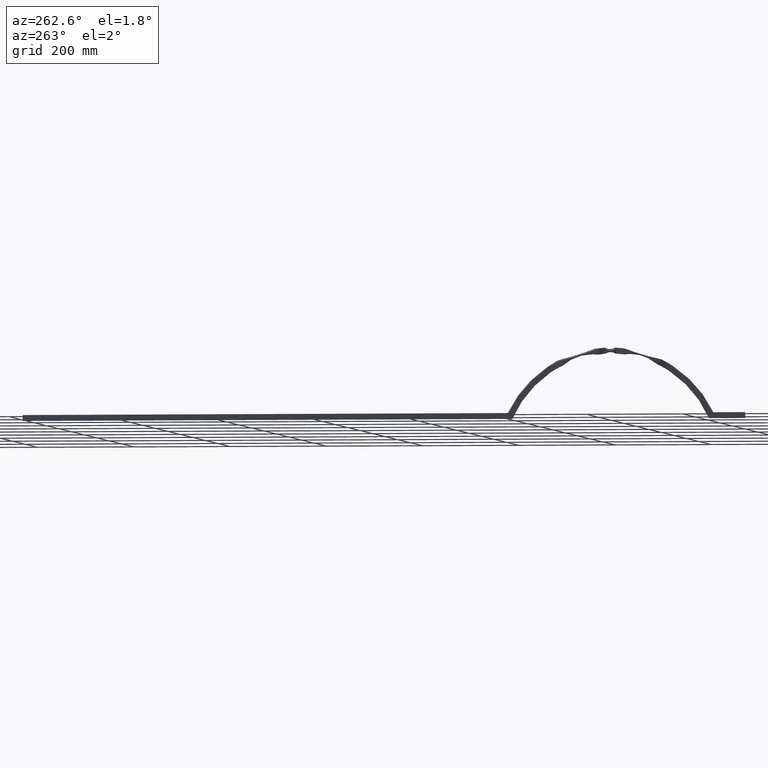
[diagram: clean part render]
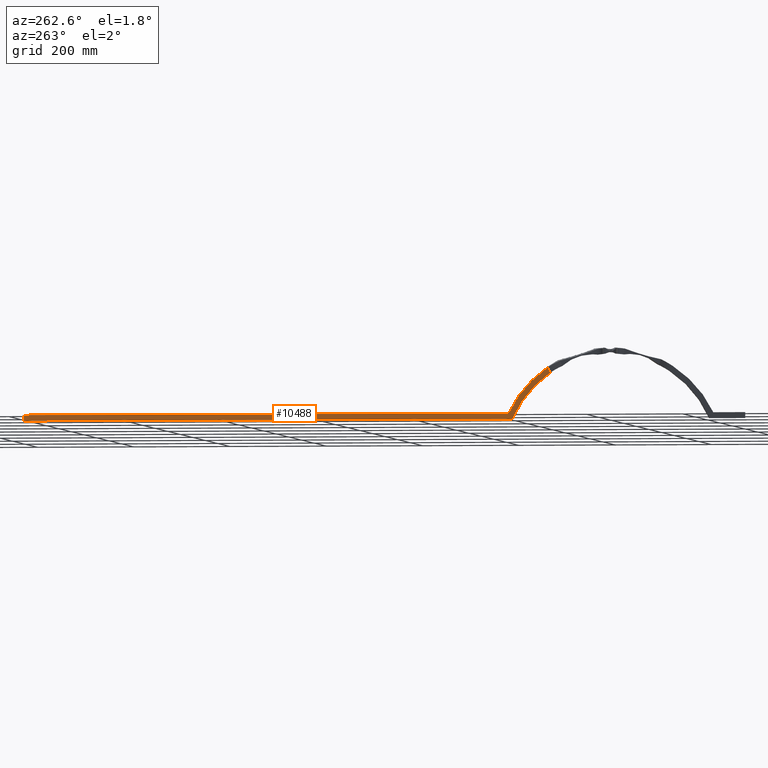
[diagram: same view with one face highlighted and labeled with its STEP entity id]
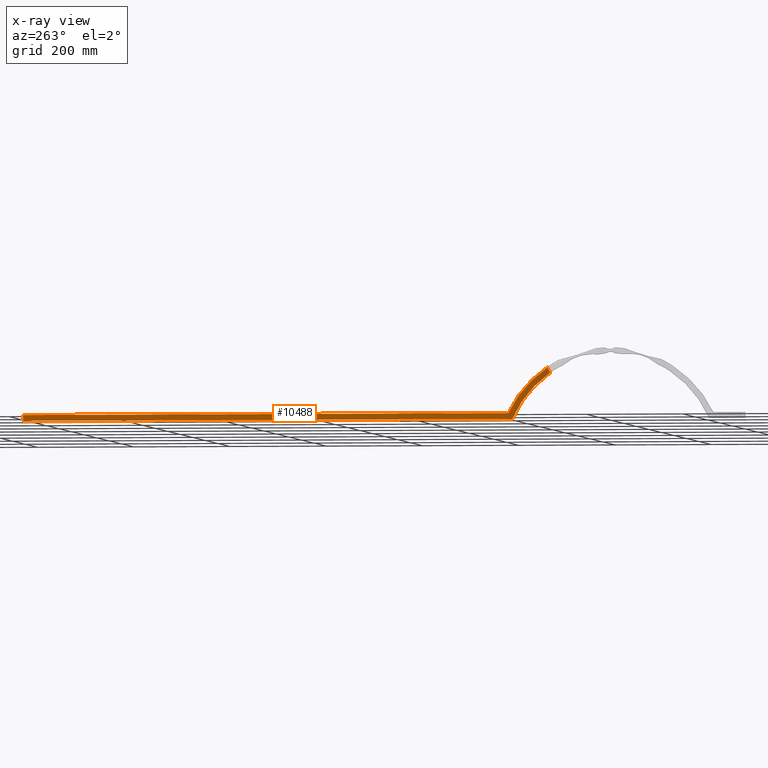
[diagram: x-ray of the same camera — body ghosted, the highlighted face saturated]
A machine part, auxiliary view. The second image highlights one B-rep face of the part: STEP entity #10488.
The next image is the same camera in x-ray: the body ghosted, the highlighted face saturated — about 0% of this face is hidden behind the body in this view.
In plain terms, the highlighted planar face has unit normal (1, 0, 0).
Its self-contained STEP definition (entity closure, byte-faithful):
#56 = CARTESIAN_POINT ( 'NONE',  ( 0.0000000000000000000, 1500.000000000000000, 3.797417691998145900E-014 ) ) ;
#380 = VERTEX_POINT ( 'NONE', #3941 ) ;
#426 = DIRECTION ( 'NONE',  ( -1.000000000000000000, -0.0000000000000000000, -0.0000000000000000000 ) ) ;
#768 = DIRECTION ( 'NONE',  ( 0.0000000000000000000, 0.0000000000000000000, -1.000000000000000000 ) ) ;
#1321 = CARTESIAN_POINT ( 'NONE',  ( 0.0000000000000000000, 1500.000000000000000, 3.797417691998145900E-014 ) ) ;
#1444 = ORIENTED_EDGE ( 'NONE', *, *, #9229, .F. ) ;
#1723 = VECTOR ( 'NONE', #8457, 1000.000000000000000 ) ;
#2121 = VERTEX_POINT ( 'NONE', #11121 ) ;
#2327 = EDGE_CURVE ( 'NONE', #9013, #4778, #13670, .T. ) ;
#2376 = DIRECTION ( 'NONE',  ( 1.000000000000000000, 0.0000000000000000000, 0.0000000000000000000 ) ) ;
#2482 = LINE ( 'NONE', #1321, #7808 ) ;
#2945 = ORIENTED_EDGE ( 'NONE', *, *, #9748, .F. ) ;
#2955 = ORIENTED_EDGE ( 'NONE', *, *, #8634, .F. ) ;
#3328 = VERTEX_POINT ( 'NONE', #10965 ) ;
#3494 = PLANE ( 'NONE',  #12575 ) ;
#3816 = CARTESIAN_POINT ( 'NONE',  ( 0.0000000000000000000, 491.8191720686836600, 11.99999999999999600 ) ) ;
#3941 = CARTESIAN_POINT ( 'NONE',  ( 0.0000000000000000000, 405.6007660649544300, 94.79244040751955000 ) ) ;
#4176 = ORIENTED_EDGE ( 'NONE', *, *, #9422, .T. ) ;
#4778 = VERTEX_POINT ( 'NONE', #3816 ) ;
#5301 = CIRCLE ( 'NONE', #12195, 223.9999999999999400 ) ;
#6117 = ORIENTED_EDGE ( 'NONE', *, *, #12631, .F. ) ;
#6297 = CIRCLE ( 'NONE', #8654, 235.9999999999999700 ) ;
#6489 = CARTESIAN_POINT ( 'NONE',  ( 0.0000000000000000000, 304.4820036223428600, -103.0256474461311600 ) ) ;
#6776 = CARTESIAN_POINT ( 'NONE',  ( 0.0000000000000000000, 1500.000000000000000, 12.00000000000003900 ) ) ;
#7615 = VECTOR ( 'NONE', #9959, 1000.000000000000000 ) ;
#7659 = CARTESIAN_POINT ( 'NONE',  ( 0.0000000000000000000, 278.9999999999999400, -90.00000000000000000 ) ) ;
#7782 = LINE ( 'NONE', #56, #1723 ) ;
#7808 = VECTOR ( 'NONE', #8519, 1000.000000000000000 ) ;
#7992 = DIRECTION ( 'NONE',  ( 1.000000000000000000, 0.0000000000000000000, 0.0000000000000000000 ) ) ;
#8457 = DIRECTION ( 'NONE',  ( -0.0000000000000000000, 1.000000000000000000, 6.470255754153915100E-017 ) ) ;
#8519 = DIRECTION ( 'NONE',  ( 0.0000000000000000000, 0.0000000000000000000, 1.000000000000000000 ) ) ;
#8634 = EDGE_CURVE ( 'NONE', #2121, #9013, #2482, .T. ) ;
#8654 = AXIS2_PLACEMENT_3D ( 'NONE', #14798, #7992, #768 ) ;
#8810 = DIRECTION ( 'NONE',  ( 0.0000000000000000000, 0.0000000000000000000, -1.000000000000000000 ) ) ;
#9013 = VERTEX_POINT ( 'NONE', #10863 ) ;
#9229 = EDGE_CURVE ( 'NONE', #4778, #11683, #6297, .T. ) ;
#9422 = EDGE_CURVE ( 'NONE', #380, #11683, #10977, .T. ) ;
#9525 = CARTESIAN_POINT ( 'NONE',  ( 0.0000000000000000000, 278.9999999999999400, -90.00000000000000000 ) ) ;
#9748 = EDGE_CURVE ( 'NONE', #3328, #2121, #7782, .T. ) ;
#9959 = DIRECTION ( 'NONE',  ( -0.0000000000000000000, 0.4551529568754966200, 0.8904132668865015800 ) ) ;
#10225 = DIRECTION ( 'NONE',  ( 0.0000000000000000000, -1.000000000000000000, -4.129553178358962500E-017 ) ) ;
#10488 = ADVANCED_FACE ( 'NONE', ( #11149 ), #3494, .F. ) ;
#10639 = VECTOR ( 'NONE', #10225, 1000.000000000000000 ) ;
#10661 = DIRECTION ( 'NONE',  ( 0.0000000000000000000, 0.0000000000000000000, -1.000000000000000000 ) ) ;
#10863 = CARTESIAN_POINT ( 'NONE',  ( 0.0000000000000000000, 1500.000000000000000, 12.00000000000003900 ) ) ;
#10965 = CARTESIAN_POINT ( 'NONE',  ( 0.0000000000000000000, 484.1243525279238600, -2.775557561562891400E-014 ) ) ;
#10977 = LINE ( 'NONE', #6489, #7615 ) ;
#11121 = CARTESIAN_POINT ( 'NONE',  ( 0.0000000000000000000, 1500.000000000000000, 3.797417691998145900E-014 ) ) ;
#11149 = FACE_OUTER_BOUND ( 'NONE', #14782, .T. ) ;
#11602 = ORIENTED_EDGE ( 'NONE', *, *, #2327, .F. ) ;
#11683 = VERTEX_POINT ( 'NONE', #11898 ) ;
#11898 = CARTESIAN_POINT ( 'NONE',  ( 0.0000000000000000000, 411.1054090268184500, 105.5611436504117500 ) ) ;
#12195 = AXIS2_PLACEMENT_3D ( 'NONE', #7659, #426, #8810 ) ;
#12575 = AXIS2_PLACEMENT_3D ( 'NONE', #9525, #2376, #10661 ) ;
#12631 = EDGE_CURVE ( 'NONE', #380, #3328, #5301, .T. ) ;
#13670 = LINE ( 'NONE', #6776, #10639 ) ;
#14782 = EDGE_LOOP ( 'NONE', ( #6117, #4176, #1444, #11602, #2955, #2945 ) ) ;
#14798 = CARTESIAN_POINT ( 'NONE',  ( 0.0000000000000000000, 278.9999999999999400, -90.00000000000000000 ) ) ;